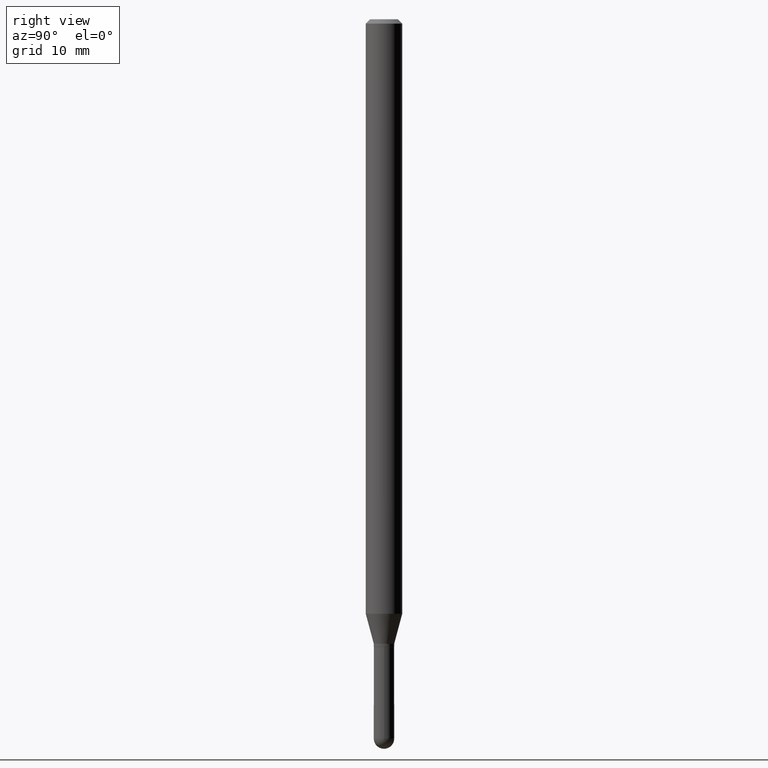
[diagram: clean part render]
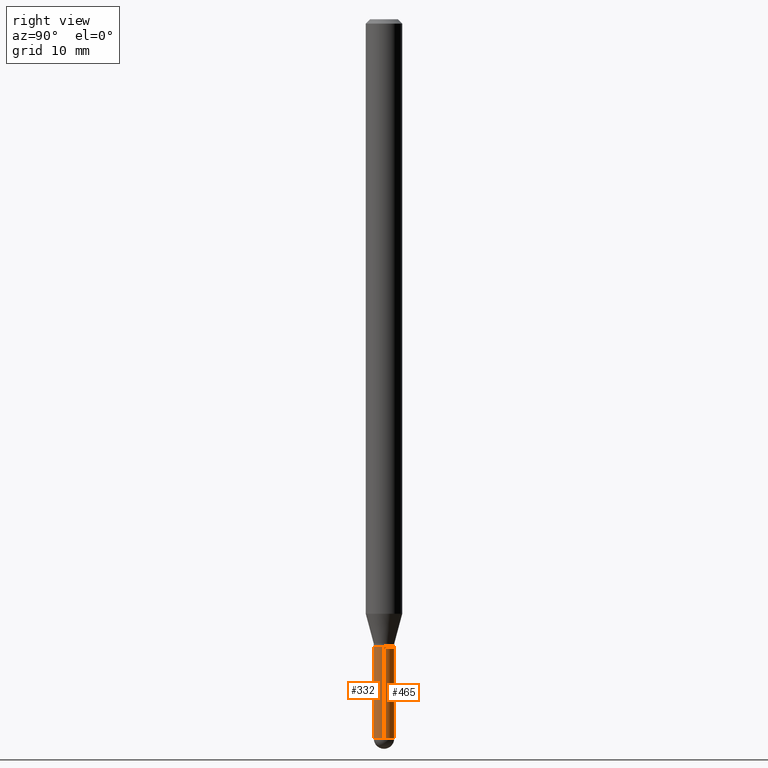
[diagram: same view with one multi-face feature highlighted, each face labeled with its STEP entity id]
A machine part, right view. The highlighted faces form ONE feature: a constant-radius fillet chain: 2 tangent blend faces with common blend radius 0.889 mm. The faces share edges in the B-rep.
Their STEP definitions:
[1] entity #465 (Cylinder):
#14 = DIRECTION ( 'NONE',  ( -2.445468806185136597E-29, 3.491481338843145583E-15, 1.000000000000000000 ) ) ;
#21 = ORIENTED_EDGE ( 'NONE', *, *, #167, .T. ) ;
#29 = CIRCLE ( 'NONE', #447, 0.03500000000000000333 ) ;
#48 = DIRECTION ( 'NONE',  ( -2.445468806185136597E-29, 3.491481338843145583E-15, 1.000000000000000000 ) ) ;
#49 = EDGE_LOOP ( 'NONE', ( #458, #498, #182, #462, #21 ) ) ;
#50 = CARTESIAN_POINT ( 'NONE',  ( 2.444036937190796236E-16, 0.03499999999999140604, -2.464999999999999858 ) ) ;
#52 = CIRCLE ( 'NONE', #337, 0.03500000000000000333 ) ;
#73 = EDGE_CURVE ( 'NONE', #504, #80, #389, .T. ) ;
#74 = CIRCLE ( 'NONE', #492, 0.03500000000000000333 ) ;
#80 = VERTEX_POINT ( 'NONE', #234 ) ;
#110 = DIRECTION ( 'NONE',  ( 1.000000000000000000, -6.982962677686276966E-15, 0.000000000000000000 ) ) ;
#120 = VERTEX_POINT ( 'NONE', #227 ) ;
#140 = CARTESIAN_POINT ( 'NONE',  ( -0.03500000000000000333, 2.486899575160350887E-16, -1.721627281589217108E-30 ) ) ;
#164 = DIRECTION ( 'NONE',  ( 1.000000000000000000, -6.982962677686248567E-15, 0.000000000000000000 ) ) ;
#167 = EDGE_CURVE ( 'NONE', #504, #218, #74, .T. ) ;
#182 = ORIENTED_EDGE ( 'NONE', *, *, #405, .F. ) ;
#189 = VECTOR ( 'NONE', #412, 39.37007874015748143 ) ;
#199 = CARTESIAN_POINT ( 'NONE',  ( 0.03500000000000000333, -2.444036937190193250E-16, 1.706661871528577808E-30 ) ) ;
#201 = CARTESIAN_POINT ( 'NONE',  ( -0.03500000000000000333, -7.807903231864523961E-15, -2.150000000000000355 ) ) ;
#207 = DIRECTION ( 'NONE',  ( -2.445468806185136597E-29, 3.491481338843145583E-15, 1.000000000000000000 ) ) ;
#211 = CARTESIAN_POINT ( 'NONE',  ( 6.028080607246362204E-29, -8.606501500248354960E-15, -2.464999999999999858 ) ) ;
#218 = VERTEX_POINT ( 'NONE', #50 ) ;
#221 = CYLINDRICAL_SURFACE ( 'NONE', #270, 0.03500000000000000333 ) ;
#227 = CARTESIAN_POINT ( 'NONE',  ( -0.03500000000000000333, -7.807903231864523961E-15, -2.464999999999999858 ) ) ;
#234 = CARTESIAN_POINT ( 'NONE',  ( 0.03500000000000000333, -7.751088572231783501E-15, -2.150000000000000355 ) ) ;
#247 = DIRECTION ( 'NONE',  ( 1.000000000000000000, -6.982962677686248567E-15, 0.000000000000000000 ) ) ;
#270 = AXIS2_PLACEMENT_3D ( 'NONE', #297, #372, #406 ) ;
#290 = CARTESIAN_POINT ( 'NONE',  ( 5.257757933298044131E-29, -7.506684878512763535E-15, -2.150000000000000355 ) ) ;
#297 = CARTESIAN_POINT ( 'NONE',  ( 0.000000000000000000, 0.000000000000000000, 0.000000000000000000 ) ) ;
#319 = VECTOR ( 'NONE', #460, 39.37007874015748143 ) ;
#325 = CARTESIAN_POINT ( 'NONE',  ( 0.03500000000000000333, -8.300996883099578424E-15, -2.464999999999999858 ) ) ;
#336 = VERTEX_POINT ( 'NONE', #201 ) ;
#337 = AXIS2_PLACEMENT_3D ( 'NONE', #351, #48, #164 ) ;
#351 = CARTESIAN_POINT ( 'NONE',  ( 6.028080607246362204E-29, -8.606501500248354960E-15, -2.464999999999999858 ) ) ;
#372 = DIRECTION ( 'NONE',  ( -2.445468806185136597E-29, 3.491481338843145583E-15, 1.000000000000000000 ) ) ;
#379 = EDGE_CURVE ( 'NONE', #218, #120, #52, .T. ) ;
#389 = LINE ( 'NONE', #199, #319 ) ;
#405 = EDGE_CURVE ( 'NONE', #80, #336, #29, .T. ) ;
#406 = DIRECTION ( 'NONE',  ( 1.000000000000000000, -6.982962677686265922E-15, 4.876176775795936353E-29 ) ) ;
#412 = DIRECTION ( 'NONE',  ( -2.445468806185136877E-29, 3.491481338843145188E-15, 1.000000000000000000 ) ) ;
#447 = AXIS2_PLACEMENT_3D ( 'NONE', #290, #14, #110 ) ;
#458 = ORIENTED_EDGE ( 'NONE', *, *, #379, .T. ) ;
#460 = DIRECTION ( 'NONE',  ( -2.445468806185136877E-29, 3.491481338843145188E-15, 1.000000000000000000 ) ) ;
#462 = ORIENTED_EDGE ( 'NONE', *, *, #73, .F. ) ;
#465 = ADVANCED_FACE ( 'NONE', ( #489 ), #221, .T. ) ;
#479 = LINE ( 'NONE', #140, #189 ) ;
#489 = FACE_OUTER_BOUND ( 'NONE', #49, .T. ) ;
#492 = AXIS2_PLACEMENT_3D ( 'NONE', #211, #207, #247 ) ;
#498 = ORIENTED_EDGE ( 'NONE', *, *, #505, .T. ) ;
#504 = VERTEX_POINT ( 'NONE', #325 ) ;
#505 = EDGE_CURVE ( 'NONE', #120, #336, #479, .T. ) ;
[2] entity #332 (Cylinder):
#32 = EDGE_CURVE ( 'NONE', #336, #80, #205, .T. ) ;
#66 = VERTEX_POINT ( 'NONE', #143 ) ;
#73 = EDGE_CURVE ( 'NONE', #504, #80, #389, .T. ) ;
#80 = VERTEX_POINT ( 'NONE', #234 ) ;
#84 = AXIS2_PLACEMENT_3D ( 'NONE', #262, #136, #217 ) ;
#113 = ORIENTED_EDGE ( 'NONE', *, *, #284, .T. ) ;
#120 = VERTEX_POINT ( 'NONE', #227 ) ;
#136 = DIRECTION ( 'NONE',  ( -2.445468806185136597E-29, 3.491481338843145583E-15, 1.000000000000000000 ) ) ;
#140 = CARTESIAN_POINT ( 'NONE',  ( -0.03500000000000000333, 2.486899575160350887E-16, -1.721627281589217108E-30 ) ) ;
#143 = CARTESIAN_POINT ( 'NONE',  ( -2.486899575159748395E-16, -0.03500000000000861450, -2.464999999999999858 ) ) ;
#168 = FACE_OUTER_BOUND ( 'NONE', #299, .T. ) ;
#178 = AXIS2_PLACEMENT_3D ( 'NONE', #310, #354, #392 ) ;
#189 = VECTOR ( 'NONE', #412, 39.37007874015748143 ) ;
#198 = CYLINDRICAL_SURFACE ( 'NONE', #178, 0.03500000000000000333 ) ;
#199 = CARTESIAN_POINT ( 'NONE',  ( 0.03500000000000000333, -2.444036937190193250E-16, 1.706661871528577808E-30 ) ) ;
#201 = CARTESIAN_POINT ( 'NONE',  ( -0.03500000000000000333, -7.807903231864523961E-15, -2.150000000000000355 ) ) ;
#205 = CIRCLE ( 'NONE', #260, 0.03500000000000000333 ) ;
#210 = DIRECTION ( 'NONE',  ( 1.000000000000000000, -6.982962677686248567E-15, 0.000000000000000000 ) ) ;
#217 = DIRECTION ( 'NONE',  ( 1.000000000000000000, -6.982962677686248567E-15, 0.000000000000000000 ) ) ;
#219 = ORIENTED_EDGE ( 'NONE', *, *, #505, .F. ) ;
#227 = CARTESIAN_POINT ( 'NONE',  ( -0.03500000000000000333, -7.807903231864523961E-15, -2.464999999999999858 ) ) ;
#234 = CARTESIAN_POINT ( 'NONE',  ( 0.03500000000000000333, -7.751088572231783501E-15, -2.150000000000000355 ) ) ;
#260 = AXIS2_PLACEMENT_3D ( 'NONE', #448, #410, #365 ) ;
#262 = CARTESIAN_POINT ( 'NONE',  ( 6.028080607246362204E-29, -8.606501500248354960E-15, -2.464999999999999858 ) ) ;
#267 = CIRCLE ( 'NONE', #327, 0.03500000000000000333 ) ;
#284 = EDGE_CURVE ( 'NONE', #120, #66, #305, .T. ) ;
#299 = EDGE_LOOP ( 'NONE', ( #219, #113, #443, #469, #334 ) ) ;
#305 = CIRCLE ( 'NONE', #84, 0.03500000000000000333 ) ;
#310 = CARTESIAN_POINT ( 'NONE',  ( 0.000000000000000000, 0.000000000000000000, 0.000000000000000000 ) ) ;
#319 = VECTOR ( 'NONE', #460, 39.37007874015748143 ) ;
#325 = CARTESIAN_POINT ( 'NONE',  ( 0.03500000000000000333, -8.300996883099578424E-15, -2.464999999999999858 ) ) ;
#327 = AXIS2_PLACEMENT_3D ( 'NONE', #364, #367, #210 ) ;
#332 = ADVANCED_FACE ( 'NONE', ( #168 ), #198, .T. ) ;
#334 = ORIENTED_EDGE ( 'NONE', *, *, #32, .F. ) ;
#336 = VERTEX_POINT ( 'NONE', #201 ) ;
#354 = DIRECTION ( 'NONE',  ( -2.445468806185136597E-29, 3.491481338843145583E-15, 1.000000000000000000 ) ) ;
#364 = CARTESIAN_POINT ( 'NONE',  ( 6.028080607246362204E-29, -8.606501500248354960E-15, -2.464999999999999858 ) ) ;
#365 = DIRECTION ( 'NONE',  ( 1.000000000000000000, -6.982962677686276966E-15, 0.000000000000000000 ) ) ;
#367 = DIRECTION ( 'NONE',  ( -2.445468806185136597E-29, 3.491481338843145583E-15, 1.000000000000000000 ) ) ;
#386 = EDGE_CURVE ( 'NONE', #66, #504, #267, .T. ) ;
#389 = LINE ( 'NONE', #199, #319 ) ;
#392 = DIRECTION ( 'NONE',  ( 1.000000000000000000, -6.982962677686265922E-15, 4.876176775795936353E-29 ) ) ;
#410 = DIRECTION ( 'NONE',  ( -2.445468806185136597E-29, 3.491481338843145583E-15, 1.000000000000000000 ) ) ;
#412 = DIRECTION ( 'NONE',  ( -2.445468806185136877E-29, 3.491481338843145188E-15, 1.000000000000000000 ) ) ;
#443 = ORIENTED_EDGE ( 'NONE', *, *, #386, .T. ) ;
#448 = CARTESIAN_POINT ( 'NONE',  ( 5.257757933298044131E-29, -7.506684878512763535E-15, -2.150000000000000355 ) ) ;
#460 = DIRECTION ( 'NONE',  ( -2.445468806185136877E-29, 3.491481338843145188E-15, 1.000000000000000000 ) ) ;
#469 = ORIENTED_EDGE ( 'NONE', *, *, #73, .T. ) ;
#479 = LINE ( 'NONE', #140, #189 ) ;
#504 = VERTEX_POINT ( 'NONE', #325 ) ;
#505 = EDGE_CURVE ( 'NONE', #120, #336, #479, .T. ) ;